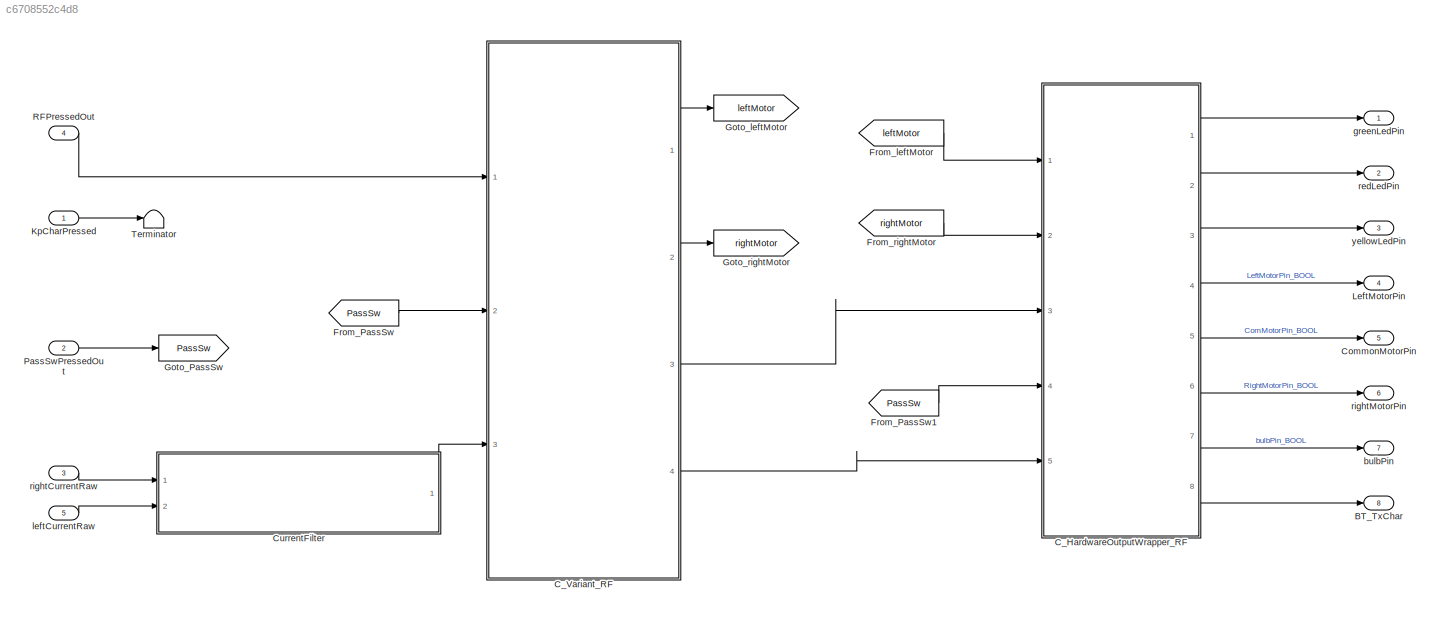
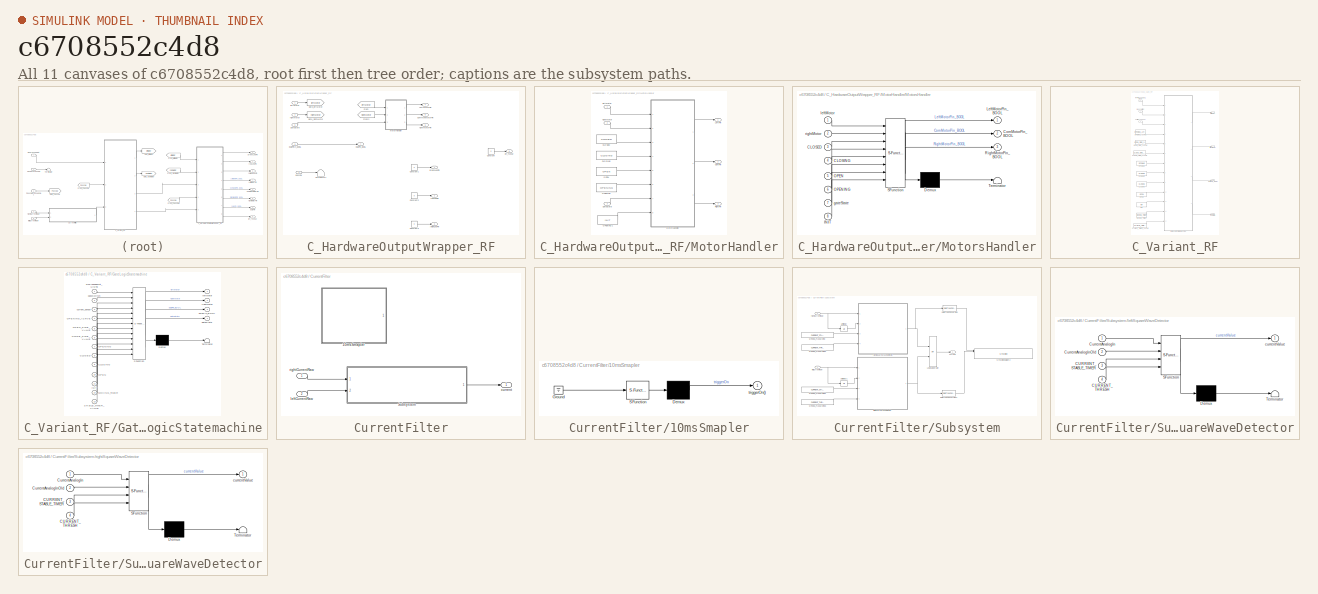
[diagram: thumbnail index - all 11 canvases of the model, root first then tree order]
MODEL slx_c6708552c4d8
KIND model
CONFIG AbsTol = auto
CONFIG FixedStep = auto
CONFIG MaxStep = auto
CONFIG MinStep = auto
CONFIG RelTol = 1e-3
CONFIG SampleTimeConstraint = Unconstrained
CONFIG Solver = FixedStepDiscrete
CONFIG SolverMode = Auto
CONFIG SolverName = FixedStepDiscrete
CONFIG StartTime = 0.0
CONFIG StopTime = 120
BLOCK [Outport] BT_TxChar
  IconDisplay = Port number
  OutDataTypeStr = double
  Port = 8
  PortDimensions = 1
  SampleTime = [0.001,0]
  SamplingMode = Sample based
  SignalType = real
BLOCK [SubSystem] C_HardwareOutputWrapper_RF
  Ports = [5, 8]
  RequestExecContextInheritance = off
  Variant = off
  VariantControl = Variant3
BLOCK [Outport] C_HardwareOutputWrapper_RF/BT_TxChar
  IconDisplay = Port number
  Port = 8
BLOCK [Outport] C_HardwareOutputWrapper_RF/CommonMotorPin
  IconDisplay = Port number
  Port = 5
BLOCK [Constant] C_HardwareOutputWrapper_RF/Constant
  SampleTime = -1
  Value = 0
BLOCK [Constant] C_HardwareOutputWrapper_RF/Constant1
  SampleTime = -1
  Value = 0
BLOCK [Constant] C_HardwareOutputWrapper_RF/Constant2
  SampleTime = -1
  Value = 0
BLOCK [Constant] C_HardwareOutputWrapper_RF/Constant3
  SampleTime = -1
  Value = 0
BLOCK [From] C_HardwareOutputWrapper_RF/From
  GotoTag = leftMotor
BLOCK [From] C_HardwareOutputWrapper_RF/From2
  GotoTag = rightMotor
BLOCK [Goto] C_HardwareOutputWrapper_RF/Goto_leftMotor
  GotoTag = leftMotor
BLOCK [Goto] C_HardwareOutputWrapper_RF/Goto_rightMotor
  GotoTag = rightMotor
BLOCK [Outport] C_HardwareOutputWrapper_RF/LeftMotorPin
  IconDisplay = Port number
  Port = 4
BLOCK [SubSystem] C_HardwareOutputWrapper_RF/MotorHandler
  Ports = [3, 3]
  RequestExecContextInheritance = off
  Variant = off
BLOCK [Constant] C_HardwareOutputWrapper_RF/MotorHandler/CLOSED
  SampleTime = -1
  Value = CLOSED
BLOCK [Constant] C_HardwareOutputWrapper_RF/MotorHandler/CLOSING
  SampleTime = -1
  Value = CLOSING
BLOCK [Outport] C_HardwareOutputWrapper_RF/MotorHandler/ComPin
  IconDisplay = Port number
  Port = 2
BLOCK [Outport] C_HardwareOutputWrapper_RF/MotorHandler/LeftPin
  IconDisplay = Port number
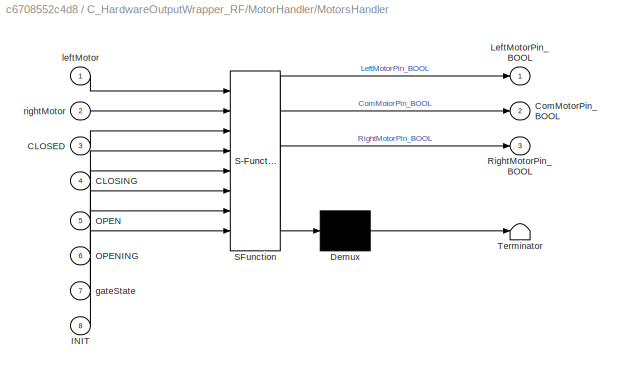
BLOCK [SubSystem] C_HardwareOutputWrapper_RF/MotorHandler/MotorsHandler
  ErrorFcn = Stateflow.Translate.translate
  PermitHierarchicalResolution = ExplicitOnly
  Ports = [8, 3]
  RequestExecContextInheritance = off
  SFBlockType = Chart
  TreatAsAtomicUnit = on
  Variant = off
BLOCK [Demux] C_HardwareOutputWrapper_RF/MotorHandler/MotorsHandler/ Demux 
  Outputs = 1
  Ports = [1, 1]
BLOCK [S-Function] C_HardwareOutputWrapper_RF/MotorHandler/MotorsHandler/ SFunction 
  EnableBusSupport = on
  FunctionName = sf_sfun
  PortCounts = [8 4]
  Ports = [8, 4]
  SFunctionDeploymentMode = off
  Tag = Stateflow S-Function GATE_C 19
BLOCK [Terminator] C_HardwareOutputWrapper_RF/MotorHandler/MotorsHandler/ Terminator 
BLOCK [Inport] C_HardwareOutputWrapper_RF/MotorHandler/MotorsHandler/CLOSED
  IconDisplay = Port number
  Port = 3
BLOCK [Inport] C_HardwareOutputWrapper_RF/MotorHandler/MotorsHandler/CLOSING
  IconDisplay = Port number
  Port = 4
BLOCK [Outport] C_HardwareOutputWrapper_RF/MotorHandler/MotorsHandler/ComMotorPin_BOOL
  IconDisplay = Port number
  Port = 2
BLOCK [Inport] C_HardwareOutputWrapper_RF/MotorHandler/MotorsHandler/INIT
  IconDisplay = Port number
  Port = 8
BLOCK [Outport] C_HardwareOutputWrapper_RF/MotorHandler/MotorsHandler/LeftMotorPin_BOOL
  IconDisplay = Port number
BLOCK [Inport] C_HardwareOutputWrapper_RF/MotorHandler/MotorsHandler/OPEN
  IconDisplay = Port number
  Port = 5
BLOCK [Inport] C_HardwareOutputWrapper_RF/MotorHandler/MotorsHandler/OPENING
  IconDisplay = Port number
  Port = 6
BLOCK [Outport] C_HardwareOutputWrapper_RF/MotorHandler/MotorsHandler/RightMotorPin_BOOL
  IconDisplay = Port number
  Port = 3
BLOCK [Inport] C_HardwareOutputWrapper_RF/MotorHandler/MotorsHandler/gateState
  IconDisplay = Port number
  Port = 7
BLOCK [Inport] C_HardwareOutputWrapper_RF/MotorHandler/MotorsHandler/leftMotor
  IconDisplay = Port number
BLOCK [Inport] C_HardwareOutputWrapper_RF/MotorHandler/MotorsHandler/rightMotor
  IconDisplay = Port number
  Port = 2
BLOCK [Constant] C_HardwareOutputWrapper_RF/MotorHandler/OPEN
  SampleTime = -1
  Value = OPEN
BLOCK [Constant] C_HardwareOutputWrapper_RF/MotorHandler/OPENING
  SampleTime = -1
  Value = OPENING
BLOCK [Constant] C_HardwareOutputWrapper_RF/MotorHandler/OPENING1
  SampleTime = -1
  Value = INIT
BLOCK [Outport] C_HardwareOutputWrapper_RF/MotorHandler/RightPin
  IconDisplay = Port number
  Port = 3
BLOCK [Inport] C_HardwareOutputWrapper_RF/MotorHandler/gateState
  IconDisplay = Port number
  Port = 3
BLOCK [Inport] C_HardwareOutputWrapper_RF/MotorHandler/leftMotor
  IconDisplay = Port number
BLOCK [Inport] C_HardwareOutputWrapper_RF/MotorHandler/rightMotor
  IconDisplay = Port number
  Port = 2
BLOCK [Terminator] C_HardwareOutputWrapper_RF/Terminator1
BLOCK [Inport] C_HardwareOutputWrapper_RF/bulbPinIn_BOOL
  IconDisplay = Port number
  Port = 3
BLOCK [Outport] C_HardwareOutputWrapper_RF/bulbPin_BOOL
  IconDisplay = Port number
  Port = 7
BLOCK [Inport] C_HardwareOutputWrapper_RF/gateState
  IconDisplay = Port number
  Port = 5
BLOCK [Outport] C_HardwareOutputWrapper_RF/greenLedPin
  IconDisplay = Port number
BLOCK [Inport] C_HardwareOutputWrapper_RF/leftMotor
  IconDisplay = Port number
BLOCK [Inport] C_HardwareOutputWrapper_RF/passSw
  IconDisplay = Port number
  Port = 4
BLOCK [Outport] C_HardwareOutputWrapper_RF/redLedPin
  IconDisplay = Port number
  Port = 2
BLOCK [Inport] C_HardwareOutputWrapper_RF/rightMotor
  IconDisplay = Port number
  Port = 2
BLOCK [Outport] C_HardwareOutputWrapper_RF/rightMotorPin
  IconDisplay = Port number
  Port = 6
BLOCK [Outport] C_HardwareOutputWrapper_RF/yellowLedPin
  IconDisplay = Port number
  Port = 3
BLOCK [SubSystem] C_Variant_RF
  Ports = [3, 4]
  RequestExecContextInheritance = off
  Variant = off
  VariantControl = Variant3
BLOCK [Constant] C_Variant_RF/CLOSED
  SampleTime = -1
  Value = CLOSED
BLOCK [Constant] C_Variant_RF/CLOSE_SIDE_VALUE
  SampleTime = -1
  Value = CLOSE_SIDE_VALUE
BLOCK [Constant] C_Variant_RF/CLOSING
  SampleTime = -1
  Value = CLOSING
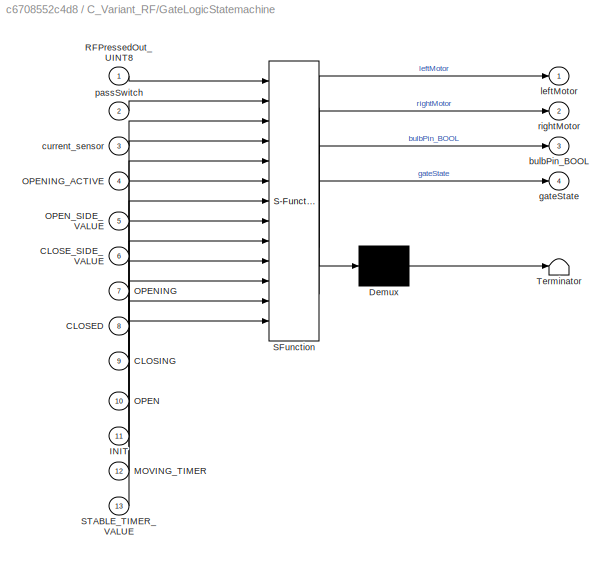
BLOCK [SubSystem] C_Variant_RF/GateLogicStatemachine
  ErrorFcn = Stateflow.Translate.translate
  PermitHierarchicalResolution = ExplicitOnly
  Ports = [13, 4]
  RequestExecContextInheritance = off
  SFBlockType = Chart
  TreatAsAtomicUnit = on
  Variant = off
BLOCK [Demux] C_Variant_RF/GateLogicStatemachine/ Demux 
  Outputs = 1
  Ports = [1, 1]
BLOCK [S-Function] C_Variant_RF/GateLogicStatemachine/ SFunction 
  EnableBusSupport = on
  FunctionName = sf_sfun
  PortCounts = [13 5]
  Ports = [13, 5]
  SFunctionDeploymentMode = off
  Tag = Stateflow S-Function GATE_C 24
BLOCK [Terminator] C_Variant_RF/GateLogicStatemachine/ Terminator 
BLOCK [Inport] C_Variant_RF/GateLogicStatemachine/CLOSED
  IconDisplay = Port number
  Port = 8
BLOCK [Inport] C_Variant_RF/GateLogicStatemachine/CLOSE_SIDE_VALUE
  IconDisplay = Port number
  Port = 6
BLOCK [Inport] C_Variant_RF/GateLogicStatemachine/CLOSING
  IconDisplay = Port number
  Port = 9
BLOCK [Inport] C_Variant_RF/GateLogicStatemachine/INIT
  IconDisplay = Port number
  Port = 11
BLOCK [Inport] C_Variant_RF/GateLogicStatemachine/MOVING_TIMER
  IconDisplay = Port number
  Port = 12
BLOCK [Inport] C_Variant_RF/GateLogicStatemachine/OPEN
  IconDisplay = Port number
  Port = 10
BLOCK [Inport] C_Variant_RF/GateLogicStatemachine/OPENING
  IconDisplay = Port number
  Port = 7
BLOCK [Inport] C_Variant_RF/GateLogicStatemachine/OPENING_ACTIVE
  IconDisplay = Port number
  Port = 4
BLOCK [Inport] C_Variant_RF/GateLogicStatemachine/OPEN_SIDE_VALUE
  IconDisplay = Port number
  Port = 5
BLOCK [Inport] C_Variant_RF/GateLogicStatemachine/RFPressedOut_UINT8
  IconDisplay = Port number
BLOCK [Inport] C_Variant_RF/GateLogicStatemachine/STABLE_TIMER_VALUE
  IconDisplay = Port number
  Port = 13
BLOCK [Outport] C_Variant_RF/GateLogicStatemachine/bulbPin_BOOL
  IconDisplay = Port number
  Port = 3
BLOCK [Inport] C_Variant_RF/GateLogicStatemachine/current_sensor
  IconDisplay = Port number
  Port = 3
BLOCK [Outport] C_Variant_RF/GateLogicStatemachine/gateState
  IconDisplay = Port number
  Port = 4
BLOCK [Outport] C_Variant_RF/GateLogicStatemachine/leftMotor
  IconDisplay = Port number
BLOCK [Inport] C_Variant_RF/GateLogicStatemachine/passSwitch
  IconDisplay = Port number
  Port = 2
BLOCK [Outport] C_Variant_RF/GateLogicStatemachine/rightMotor
  IconDisplay = Port number
  Port = 2
BLOCK [Constant] C_Variant_RF/INIT
  SampleTime = -1
  Value = INIT
BLOCK [Constant] C_Variant_RF/MOVING_TIMER
  SampleTime = -1
  Value = MOVING_TIMER
BLOCK [Constant] C_Variant_RF/OPEN
  SampleTime = -1
  Value = OPEN
BLOCK [Constant] C_Variant_RF/OPENING
  SampleTime = -1
  Value = OPENING
BLOCK [Constant] C_Variant_RF/OPENING_ACTIVE
  SampleTime = -1
  Value = OPENING_ACTIVE
BLOCK [Constant] C_Variant_RF/OPEN_SIDE_VALUE
  SampleTime = -1
  Value = OPEN_SIDE_VALUE
BLOCK [Inport] C_Variant_RF/RFPressedOut_UINT8
  IconDisplay = Port number
BLOCK [Constant] C_Variant_RF/STABLE_TIMER_VALUE
  SampleTime = -1
  Value = STABLE_TIMER_VALUE
BLOCK [Outport] C_Variant_RF/bulbPin_BOOL
  IconDisplay = Port number
  Port = 3
BLOCK [Inport] C_Variant_RF/current_sensor
  IconDisplay = Port number
  Port = 3
BLOCK [Outport] C_Variant_RF/getState
  IconDisplay = Port number
  Port = 4
BLOCK [Outport] C_Variant_RF/leftMotor
  IconDisplay = Port number
BLOCK [Inport] C_Variant_RF/passSwitch
  IconDisplay = Port number
  Port = 2
BLOCK [Outport] C_Variant_RF/rightMotor
  IconDisplay = Port number
  Port = 2
BLOCK [Outport] CommonMotorPin
  IconDisplay = Port number
  OutDataTypeStr = boolean
  Port = 5
  PortDimensions = 1
  SampleTime = [0.001,0]
  SamplingMode = Sample based
  SignalType = real
BLOCK [SubSystem] CurrentFilter
  Ports = [2, 1]
  RequestExecContextInheritance = off
  Variant = off
BLOCK [SubSystem] CurrentFilter/10msSmapler
  Commented = on
  ErrorFcn = Stateflow.Translate.translate
  PermitHierarchicalResolution = ExplicitOnly
  Ports = [0, 1]
  RequestExecContextInheritance = off
  SFBlockType = Chart
  TreatAsAtomicUnit = on
  Variant = off
BLOCK [Demux] CurrentFilter/10msSmapler/ Demux 
  Outputs = 1
  Ports = [1, 1]
BLOCK [Ground] CurrentFilter/10msSmapler/ Ground 
BLOCK [S-Function] CurrentFilter/10msSmapler/ SFunction 
  EnableBusSupport = on
  FunctionName = sf_sfun
  PortCounts = [1 1]
  Ports = [1, 1]
  SFunctionDeploymentMode = off
  Tag = Stateflow S-Function GATE_C 21
BLOCK [Outport] CurrentFilter/10msSmapler/triggerOn()
  IconDisplay = Port number
BLOCK [SubSystem] CurrentFilter/Subsystem
  Ports = [2, 1]
  RequestExecContextInheritance = off
  Variant = off
BLOCK [DataTypeConversion] CurrentFilter/Subsystem/Data Type Conversion
  OutDataTypeStr = uint16
  RndMeth = Floor
  SaturateOnIntegerOverflow = off
BLOCK [DataTypeConversion] CurrentFilter/Subsystem/Data Type Conversion1
  OutDataTypeStr = uint16
  RndMeth = Floor
  SaturateOnIntegerOverflow = off
BLOCK [Logic] CurrentFilter/Subsystem/Logical Operator
  AllPortsSameDT = off
  Operator = OR
  OutDataTypeStr = boolean
  Ports = [2, 1]
BLOCK [S-Function] CurrentFilter/Subsystem/S-Function Builder2
  Commented = on
  CopyFcn = set_param(gcbh,'LinkStatus','none')
  EnableBusSupport = off
  FunctionName = printingBlockMotor
  InitFcn = try, set_param(gcb,'FunctionName','printingBlockMotor'), end
  OpenFcn = sfunctionwizard(gcbh)
  Ports = [6]
  PreSaveFcn = try, set_param(gcb,'FunctionName','printingBlockMotor'), end
  SFunctionDeploymentMode = off
  SFunctionModules = printingBlockMotor_wrapper
BLOCK [UnitDelay] CurrentFilter/Subsystem/Unit Delay
  InputProcessing = Elements as channels (sample based)
  SampleTime = -1
BLOCK [UnitDelay] CurrentFilter/Subsystem/Unit Delay1
  InputProcessing = Elements as channels (sample based)
  SampleTime = -1
BLOCK [Constant] CurrentFilter/Subsystem/WRONG_PASSWORD
  SampleTime = -1
  Value = CURRENT_STABLE_TIMER
BLOCK [Constant] CurrentFilter/Subsystem/WRONG_PASSWORD1
  SampleTime = -1
  Value = CURRENT_STABLE_TIMER
BLOCK [Constant] CurrentFilter/Subsystem/WRONG_PASSWORD2
  SampleTime = -1
  Value = CURRENT_THRESH
BLOCK [Constant] CurrentFilter/Subsystem/WRONG_PASSWORD3
  SampleTime = -1
  Value = CURRENT_THRESH
BLOCK [Outport] CurrentFilter/Subsystem/current
  IconDisplay = Port number
BLOCK [Inport] CurrentFilter/Subsystem/leftCurrentRaw
  IconDisplay = Port number
  Port = 2
BLOCK [SubSystem] CurrentFilter/Subsystem/leftSquareWaveDetector
  ErrorFcn = Stateflow.Translate.translate
  PermitHierarchicalResolution = ExplicitOnly
  Ports = [4, 1]
  RequestExecContextInheritance = off
  SFBlockType = Chart
  TreatAsAtomicUnit = on
  Variant = off
BLOCK [Demux] CurrentFilter/Subsystem/leftSquareWaveDetector/ Demux 
  Outputs = 1
  Ports = [1, 1]
BLOCK [S-Function] CurrentFilter/Subsystem/leftSquareWaveDetector/ SFunction 
  EnableBusSupport = on
  FunctionName = sf_sfun
  PortCounts = [4 2]
  Ports = [4, 2]
  SFunctionDeploymentMode = off
  Tag = Stateflow S-Function GATE_C 1
BLOCK [Terminator] CurrentFilter/Subsystem/leftSquareWaveDetector/ Terminator 
BLOCK [Inport] CurrentFilter/Subsystem/leftSquareWaveDetector/CURRENT_STABLE_TIMER
  IconDisplay = Port number
  Port = 3
BLOCK [Inport] CurrentFilter/Subsystem/leftSquareWaveDetector/CURRENT_THRESH
  IconDisplay = Port number
  Port = 4
BLOCK [Inport] CurrentFilter/Subsystem/leftSquareWaveDetector/CurrentAnalogIn
  IconDisplay = Port number
BLOCK [Inport] CurrentFilter/Subsystem/leftSquareWaveDetector/CurrentAnalogInOld
  IconDisplay = Port number
  Port = 2
BLOCK [Outport] CurrentFilter/Subsystem/leftSquareWaveDetector/currentValue
  IconDisplay = Port number
BLOCK [Inport] CurrentFilter/Subsystem/rightCurrentRaw
  IconDisplay = Port number
BLOCK [SubSystem] CurrentFilter/Subsystem/rightSquareWaveDetector
  ErrorFcn = Stateflow.Translate.translate
  PermitHierarchicalResolution = ExplicitOnly
  Ports = [4, 1]
  RequestExecContextInheritance = off
  SFBlockType = Chart
  TreatAsAtomicUnit = on
  Variant = off
BLOCK [Demux] CurrentFilter/Subsystem/rightSquareWaveDetector/ Demux 
  Outputs = 1
  Ports = [1, 1]
BLOCK [S-Function] CurrentFilter/Subsystem/rightSquareWaveDetector/ SFunction 
  EnableBusSupport = on
  FunctionName = sf_sfun
  PortCounts = [4 2]
  Ports = [4, 2]
  SFunctionDeploymentMode = off
  Tag = Stateflow S-Function GATE_C 22
BLOCK [Terminator] CurrentFilter/Subsystem/rightSquareWaveDetector/ Terminator 
BLOCK [Inport] CurrentFilter/Subsystem/rightSquareWaveDetector/CURRENT_STABLE_TIMER
  IconDisplay = Port number
  Port = 3
BLOCK [Inport] CurrentFilter/Subsystem/rightSquareWaveDetector/CURRENT_THRESH
  IconDisplay = Port number
  Port = 4
BLOCK [Inport] CurrentFilter/Subsystem/rightSquareWaveDetector/CurrentAnalogIn
  IconDisplay = Port number
BLOCK [Inport] CurrentFilter/Subsystem/rightSquareWaveDetector/CurrentAnalogInOld
  IconDisplay = Port number
  Port = 2
BLOCK [Outport] CurrentFilter/Subsystem/rightSquareWaveDetector/currentValue
  IconDisplay = Port number
BLOCK [Outport] CurrentFilter/current
  IconDisplay = Port number
BLOCK [Inport] CurrentFilter/leftCurrentRaw
  IconDisplay = Port number
  Port = 2
BLOCK [Inport] CurrentFilter/rightCurrentRaw
  IconDisplay = Port number
BLOCK [From] From_PassSw
  GotoTag = PassSw
BLOCK [From] From_PassSw1
  GotoTag = PassSw
BLOCK [From] From_leftMotor
  GotoTag = leftMotor
BLOCK [From] From_rightMotor
  GotoTag = rightMotor
BLOCK [Goto] Goto_PassSw
  GotoTag = PassSw
BLOCK [Goto] Goto_leftMotor
  GotoTag = leftMotor
BLOCK [Goto] Goto_rightMotor
  GotoTag = rightMotor
BLOCK [Inport] KpCharPressed
  IconDisplay = Port number
  OutDataTypeStr = uint8
  PortDimensions = 1
  SampleTime = 0
  SamplingMode = Sample based
  SignalType = real
BLOCK [Outport] LeftMotorPin
  IconDisplay = Port number
  OutDataTypeStr = boolean
  Port = 4
  PortDimensions = 1
  SampleTime = [0.001,0]
  SamplingMode = Sample based
  SignalType = real
BLOCK [Inport] PassSwPressedOut
  IconDisplay = Port number
  OutDataTypeStr = boolean
  Port = 2
  PortDimensions = 1
  SampleTime = 0
  SamplingMode = Sample based
  SignalType = real
BLOCK [Inport] RFPressedOut
  IconDisplay = Port number
  OutDataTypeStr = uint8
  Port = 4
  PortDimensions = 1
  SampleTime = 0
  SamplingMode = Sample based
  SignalType = real
BLOCK [Terminator] Terminator
BLOCK [Outport] bulbPin
  IconDisplay = Port number
  OutDataTypeStr = boolean
  Port = 7
  PortDimensions = 1
  SampleTime = [0.001,0]
  SamplingMode = Sample based
  SignalType = real
BLOCK [Outport] greenLedPin
  IconDisplay = Port number
  OutDataTypeStr = double
  PortDimensions = 1
  SampleTime = [0.001,0]
  SamplingMode = Sample based
  SignalType = real
BLOCK [Inport] leftCurrentRaw
  IconDisplay = Port number
  OutDataTypeStr = uint16
  Port = 5
  PortDimensions = 1
  SampleTime = 0
  SamplingMode = Sample based
  SignalType = real
BLOCK [Outport] redLedPin
  IconDisplay = Port number
  OutDataTypeStr = double
  Port = 2
  PortDimensions = 1
  SampleTime = [0.001,0]
  SamplingMode = Sample based
  SignalType = real
BLOCK [Inport] rightCurrentRaw
  IconDisplay = Port number
  OutDataTypeStr = uint16
  Port = 3
  PortDimensions = 1
  SampleTime = 0
  SamplingMode = Sample based
  SignalType = real
BLOCK [Outport] rightMotorPin
  IconDisplay = Port number
  OutDataTypeStr = boolean
  Port = 6
  PortDimensions = 1
  SampleTime = [0.001,0]
  SamplingMode = Sample based
  SignalType = real
BLOCK [Outport] yellowLedPin
  IconDisplay = Port number
  OutDataTypeStr = double
  Port = 3
  PortDimensions = 1
  SampleTime = [0.001,0]
  SamplingMode = Sample based
  SignalType = real
LINE C_HardwareOutputWrapper_RF/Constant1:1 -> C_HardwareOutputWrapper_RF/greenLedPin:1
LINE C_HardwareOutputWrapper_RF/Constant2:1 -> C_HardwareOutputWrapper_RF/redLedPin:1
LINE C_HardwareOutputWrapper_RF/Constant3:1 -> C_HardwareOutputWrapper_RF/yellowLedPin:1
LINE C_HardwareOutputWrapper_RF/Constant:1 -> C_HardwareOutputWrapper_RF/BT_TxChar:1
LINE C_HardwareOutputWrapper_RF/From2:1 -> C_HardwareOutputWrapper_RF/MotorHandler:2
LINE C_HardwareOutputWrapper_RF/From:1 -> C_HardwareOutputWrapper_RF/MotorHandler:1
LINE C_HardwareOutputWrapper_RF/MotorHandler/CLOSED:1 -> C_HardwareOutputWrapper_RF/MotorHandler/MotorsHandler:3
LINE C_HardwareOutputWrapper_RF/MotorHandler/CLOSING:1 -> C_HardwareOutputWrapper_RF/MotorHandler/MotorsHandler:4
LINE C_HardwareOutputWrapper_RF/MotorHandler/MotorsHandler:1 -> C_HardwareOutputWrapper_RF/MotorHandler/LeftPin:1
LINE C_HardwareOutputWrapper_RF/MotorHandler/MotorsHandler:2 -> C_HardwareOutputWrapper_RF/MotorHandler/ComPin:1
LINE C_HardwareOutputWrapper_RF/MotorHandler/MotorsHandler:3 -> C_HardwareOutputWrapper_RF/MotorHandler/RightPin:1
LINE C_HardwareOutputWrapper_RF/MotorHandler/OPEN:1 -> C_HardwareOutputWrapper_RF/MotorHandler/MotorsHandler:5
LINE C_HardwareOutputWrapper_RF/MotorHandler/OPENING1:1 -> C_HardwareOutputWrapper_RF/MotorHandler/MotorsHandler:8
LINE C_HardwareOutputWrapper_RF/MotorHandler/OPENING:1 -> C_HardwareOutputWrapper_RF/MotorHandler/MotorsHandler:6
LINE C_HardwareOutputWrapper_RF/MotorHandler/gateState:1 -> C_HardwareOutputWrapper_RF/MotorHandler/MotorsHandler:7
LINE C_HardwareOutputWrapper_RF/MotorHandler/leftMotor:1 -> C_HardwareOutputWrapper_RF/MotorHandler/MotorsHandler:1
LINE C_HardwareOutputWrapper_RF/MotorHandler/rightMotor:1 -> C_HardwareOutputWrapper_RF/MotorHandler/MotorsHandler:2
LINE C_HardwareOutputWrapper_RF/MotorHandler:1 -> C_HardwareOutputWrapper_RF/LeftMotorPin:1
LINE C_HardwareOutputWrapper_RF/MotorHandler:2 -> C_HardwareOutputWrapper_RF/CommonMotorPin:1
LINE C_HardwareOutputWrapper_RF/MotorHandler:3 -> C_HardwareOutputWrapper_RF/rightMotorPin:1
LINE C_HardwareOutputWrapper_RF/bulbPinIn_BOOL:1 -> C_HardwareOutputWrapper_RF/bulbPin_BOOL:1
LINE C_HardwareOutputWrapper_RF/gateState:1 -> C_HardwareOutputWrapper_RF/MotorHandler:3
LINE C_HardwareOutputWrapper_RF/leftMotor:1 -> C_HardwareOutputWrapper_RF/Goto_leftMotor:1
LINE C_HardwareOutputWrapper_RF/passSw:1 -> C_HardwareOutputWrapper_RF/Terminator1:1
LINE C_HardwareOutputWrapper_RF/rightMotor:1 -> C_HardwareOutputWrapper_RF/Goto_rightMotor:1
LINE C_HardwareOutputWrapper_RF:1 -> greenLedPin:1
LINE C_HardwareOutputWrapper_RF:2 -> redLedPin:1
LINE C_HardwareOutputWrapper_RF:3 -> yellowLedPin:1
LINE C_HardwareOutputWrapper_RF:4 -> LeftMotorPin:1
LINE C_HardwareOutputWrapper_RF:5 -> CommonMotorPin:1
LINE C_HardwareOutputWrapper_RF:6 -> rightMotorPin:1
LINE C_HardwareOutputWrapper_RF:7 -> bulbPin:1
LINE C_HardwareOutputWrapper_RF:8 -> BT_TxChar:1
LINE C_Variant_RF/CLOSED:1 -> C_Variant_RF/GateLogicStatemachine:8
LINE C_Variant_RF/CLOSE_SIDE_VALUE:1 -> C_Variant_RF/GateLogicStatemachine:6
LINE C_Variant_RF/CLOSING:1 -> C_Variant_RF/GateLogicStatemachine:9
LINE C_Variant_RF/GateLogicStatemachine:1 -> C_Variant_RF/leftMotor:1
LINE C_Variant_RF/GateLogicStatemachine:2 -> C_Variant_RF/rightMotor:1
LINE C_Variant_RF/GateLogicStatemachine:3 -> C_Variant_RF/bulbPin_BOOL:1
LINE C_Variant_RF/GateLogicStatemachine:4 -> C_Variant_RF/getState:1
LINE C_Variant_RF/INIT:1 -> C_Variant_RF/GateLogicStatemachine:11
LINE C_Variant_RF/MOVING_TIMER:1 -> C_Variant_RF/GateLogicStatemachine:12
LINE C_Variant_RF/OPEN:1 -> C_Variant_RF/GateLogicStatemachine:10
LINE C_Variant_RF/OPENING:1 -> C_Variant_RF/GateLogicStatemachine:7
LINE C_Variant_RF/OPENING_ACTIVE:1 -> C_Variant_RF/GateLogicStatemachine:4
LINE C_Variant_RF/OPEN_SIDE_VALUE:1 -> C_Variant_RF/GateLogicStatemachine:5
LINE C_Variant_RF/RFPressedOut_UINT8:1 -> C_Variant_RF/GateLogicStatemachine:1
LINE C_Variant_RF/STABLE_TIMER_VALUE:1 -> C_Variant_RF/GateLogicStatemachine:13
LINE C_Variant_RF/current_sensor:1 -> C_Variant_RF/GateLogicStatemachine:3
LINE C_Variant_RF/passSwitch:1 -> C_Variant_RF/GateLogicStatemachine:2
LINE C_Variant_RF:1 -> Goto_leftMotor:1
LINE C_Variant_RF:2 -> Goto_rightMotor:1
LINE C_Variant_RF:3 -> C_HardwareOutputWrapper_RF:3
LINE C_Variant_RF:4 -> C_HardwareOutputWrapper_RF:5
LINE CurrentFilter/Subsystem/Data Type Conversion1:1 -> CurrentFilter/Subsystem/S-Function Builder2:2
LINE CurrentFilter/Subsystem/Data Type Conversion:1 -> CurrentFilter/Subsystem/S-Function Builder2:1
LINE CurrentFilter/Subsystem/Logical Operator:1 -> CurrentFilter/Subsystem/current:1
LINE CurrentFilter/Subsystem/Unit Delay1:1 -> CurrentFilter/Subsystem/leftSquareWaveDetector:2
LINE CurrentFilter/Subsystem/Unit Delay:1 -> CurrentFilter/Subsystem/rightSquareWaveDetector:2
LINE CurrentFilter/Subsystem/WRONG_PASSWORD1:1 -> CurrentFilter/Subsystem/leftSquareWaveDetector:3
LINE CurrentFilter/Subsystem/WRONG_PASSWORD2:1 -> CurrentFilter/Subsystem/rightSquareWaveDetector:4
LINE CurrentFilter/Subsystem/WRONG_PASSWORD3:1 -> CurrentFilter/Subsystem/leftSquareWaveDetector:4
LINE CurrentFilter/Subsystem/WRONG_PASSWORD:1 -> CurrentFilter/Subsystem/rightSquareWaveDetector:3
NET CurrentFilter/Subsystem/leftCurrentRaw:1 -> CurrentFilter/Subsystem/Unit Delay1:1, CurrentFilter/Subsystem/leftSquareWaveDetector:1
NET CurrentFilter/Subsystem/leftSquareWaveDetector:1 -> CurrentFilter/Subsystem/Data Type Conversion1:1, CurrentFilter/Subsystem/Logical Operator:2
NET CurrentFilter/Subsystem/rightCurrentRaw:1 -> CurrentFilter/Subsystem/Unit Delay:1, CurrentFilter/Subsystem/rightSquareWaveDetector:1
NET CurrentFilter/Subsystem/rightSquareWaveDetector:1 -> CurrentFilter/Subsystem/Data Type Conversion:1, CurrentFilter/Subsystem/Logical Operator:1
LINE CurrentFilter/Subsystem:1 -> CurrentFilter/current:1
LINE CurrentFilter/leftCurrentRaw:1 -> CurrentFilter/Subsystem:2
LINE CurrentFilter/rightCurrentRaw:1 -> CurrentFilter/Subsystem:1
LINE CurrentFilter:1 -> C_Variant_RF:3
LINE From_PassSw1:1 -> C_HardwareOutputWrapper_RF:4
LINE From_PassSw:1 -> C_Variant_RF:2
LINE From_leftMotor:1 -> C_HardwareOutputWrapper_RF:1
LINE From_rightMotor:1 -> C_HardwareOutputWrapper_RF:2
LINE KpCharPressed:1 -> Terminator:1
LINE PassSwPressedOut:1 -> Goto_PassSw:1
LINE RFPressedOut:1 -> C_Variant_RF:1
LINE leftCurrentRaw:1 -> CurrentFilter:2
LINE rightCurrentRaw:1 -> CurrentFilter:1
note: NET lines group one-source signal fan-out (src -> all destinations, sorted); 1:1 wires keep LINE
CHART CurrentFilter/Subsystem/leftSquareWaveDetector states=4 transitions=8
  STATE_LABEL 'Running\nentry:\ncounterHigh = 0;\ncounterLow= 0;\ncurrentValue = 1;'
  STATE_LABEL 'High\nentry:\ncounterLow = 0;'
  STATE_LABEL 'Low\nentry:\ncounterHigh = 0;'
  STATE_LABEL '[CurrentAnalogIn > CURRENT_THRESH]\n/counterHigh++;'
  STATE_LABEL '[CurrentAnalogIn < CURRENT_THRESH]'
  STATE_LABEL '[CurrentAnalogIn > CURRENT_THRESH]'
  STATE_LABEL '[CurrentAnalogIn < CURRENT_THRESH]\n/counterLow++;'
  STATE_LABEL 'High\nentry:\ncounterLow = 0;'
  STATE_LABEL 'Low\nentry:\ncounterHigh = 0;'
  STATE_LABEL 'Stop\nentry:\ncurrentValue = 0;\nstableCounter = 0; \n\n '
CHART C_HardwareOutputWrapper_RF/MotorHandler/MotorsHandler states=0 transitions=34
CHART CurrentFilter/10msSmapler states=0 transitions=3
CHART CurrentFilter/Subsystem/rightSquareWaveDetector states=4 transitions=8
  STATE_LABEL 'Running\nentry:\ncounterHigh = 0;\ncounterLow= 0;\ncurrentValue = 1;'
  STATE_LABEL 'High\nentry:\ncounterLow = 0;'
  STATE_LABEL 'Low\nentry:\ncounterHigh = 0;'
  STATE_LABEL '[CurrentAnalogIn > CURRENT_THRESH]\n/counterHigh++;'
  STATE_LABEL '[CurrentAnalogIn < CURRENT_THRESH]'
  STATE_LABEL '[CurrentAnalogIn > CURRENT_THRESH]'
  STATE_LABEL '[CurrentAnalogIn < CURRENT_THRESH]\n/counterLow++;'
  STATE_LABEL 'High\nentry:\ncounterLow = 0;'
  STATE_LABEL 'Low\nentry:\ncounterHigh = 0;'
  STATE_LABEL 'Stop\nentry:\ncurrentValue = 0;\nstableCounter = 0; \n\n '
CHART C_Variant_RF/GateLogicStatemachine states=13 transitions=23
  STATE_LABEL 'init\nentry:\ngotoReady = false; \nbulbPin_BOOL = 0;\nleftMotor = CLOSING;\nrightMotor = CLOSING;\ngateState = INIT;'
  STATE_LABEL 'opening\nentry:\nbulbPin_BOOL = true;\ngateState = OPENING;\n'
  STATE_LABEL 'openLeftSide\nentry:\nleftMotor = OPENING;\nrightMotor = CLOSED;\n\n'
  STATE_LABEL 'openRightSide\nentry:\nrightMotor = OPENING;\n'
  STATE_LABEL '[after(OPEN_SIDE_VALUE, tick)]'
  STATE_LABEL 'openLeftSide\nentry:\nleftMotor = OPENING;\nrightMotor = CLOSED;\n\n'
  STATE_LABEL 'openRightSide\nentry:\nrightMotor = OPENING;\n'
  STATE_LABEL 'closed\nentry:\nbulbPin_BOOL = false;\nleftMotor = CLOSING;\nrightMotor = CLOSING;\nopeningActive = 0;\ngateState = CLOSED;\nclosingTimer = 0;\n'
  STATE_LABEL 'openingGate\nentry:\nopeningActive = OPENING_ACTIVE;'
  STATE_LABEL 'MonitorInput'
  STATE_LABEL '[(RFPressedOut_UINT8 == true) && hasChanged(RFPressedOut_UINT8)]'
  STATE_LABEL '[((passSwitch == true) && hasChanged(passSwitch))]'
  STATE_LABEL 'openingGate\nentry:\nopeningActive = OPENING_ACTIVE;'
  STATE_LABEL 'MonitorInput'
  STATE_LABEL 'closing\nentry:\ngateState = CLOSING;'
  STATE_LABEL 'closingRightSide\nentry:\nrightMotor = CLOSING;'
  STATE_LABEL 'closingLeftSide\nentry:\nleftMotor = CLOSING;'
  STATE_LABEL '[after(CLOSE_SIDE_VALUE, tick)]'
  STATE_LABEL 'closingRightSide\nentry:\nrightMotor = CLOSING;'
  STATE_LABEL 'closingLeftSide\nentry:\nleftMotor = CLOSING;'
  STATE_LABEL 'open\nentry:\ngateState = OPEN;\n'
  STATE_LABEL 'gateOpen\nentry:\nclosing_active = false;\nleftMotor = OPEN;\nrightMotor = OPEN;\n\n'
  STATE_LABEL 'closing\nentry:\nclosing_active = true;'
  STATE_LABEL '[((passSwitch == true) && hasChanged(passSwitch))]'
  STATE_LABEL '[(hasChanged(RFPressedOut_UINT8))]'
  STATE_LABEL '[(RFPressedOut_UINT8 == true)]'
  STATE_LABEL 'gateOpen\nentry:\nclosing_active = false;\nleftMotor = OPEN;\nrightMotor = OPEN;\n\n'
  STATE_LABEL 'closing\nentry:\nclosing_active = true;'
